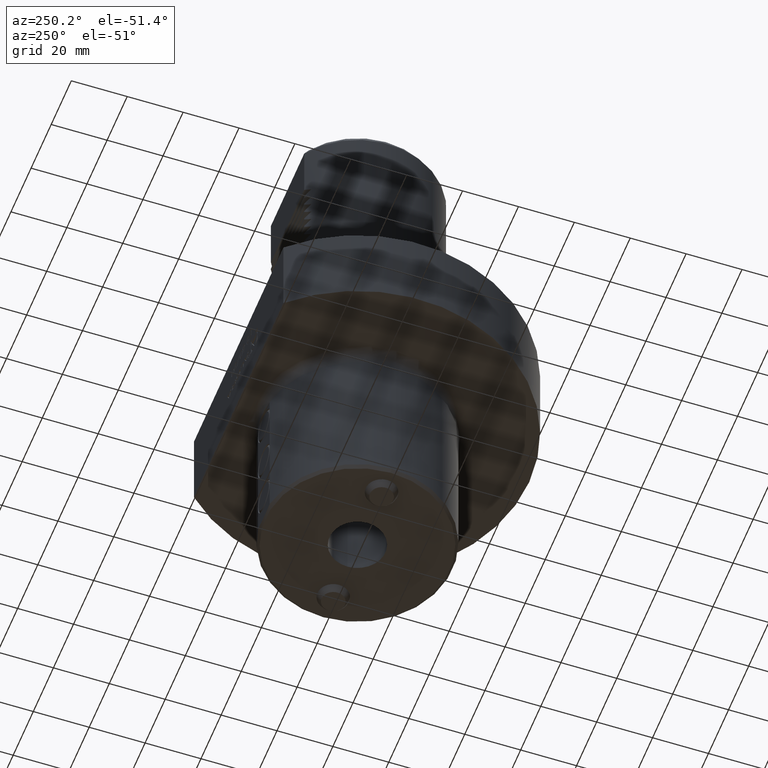
[diagram: clean part render]
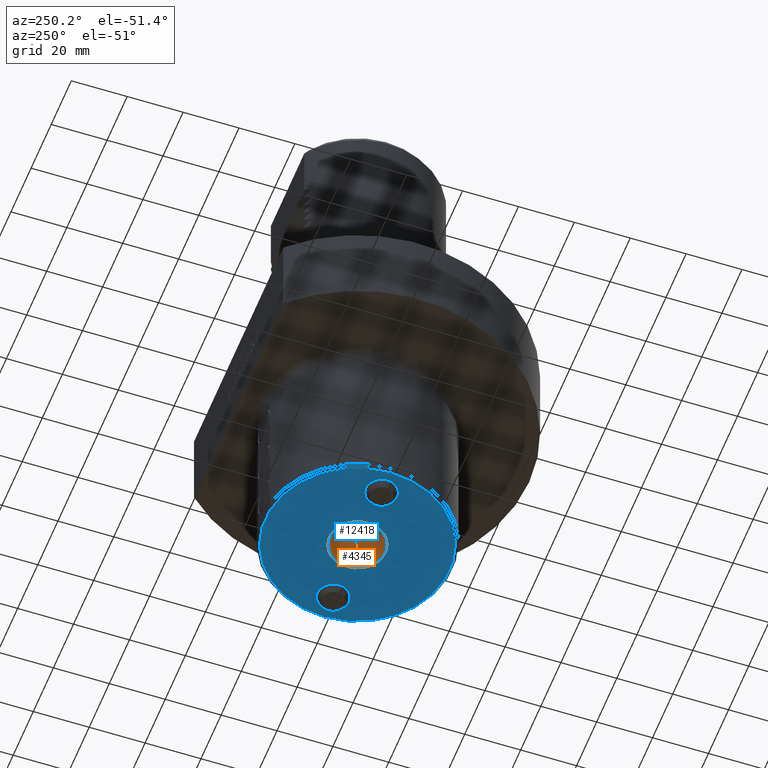
[diagram: same view with the hole feature highlighted: cylindrical wall and planar end face, labeled with their STEP entity ids]
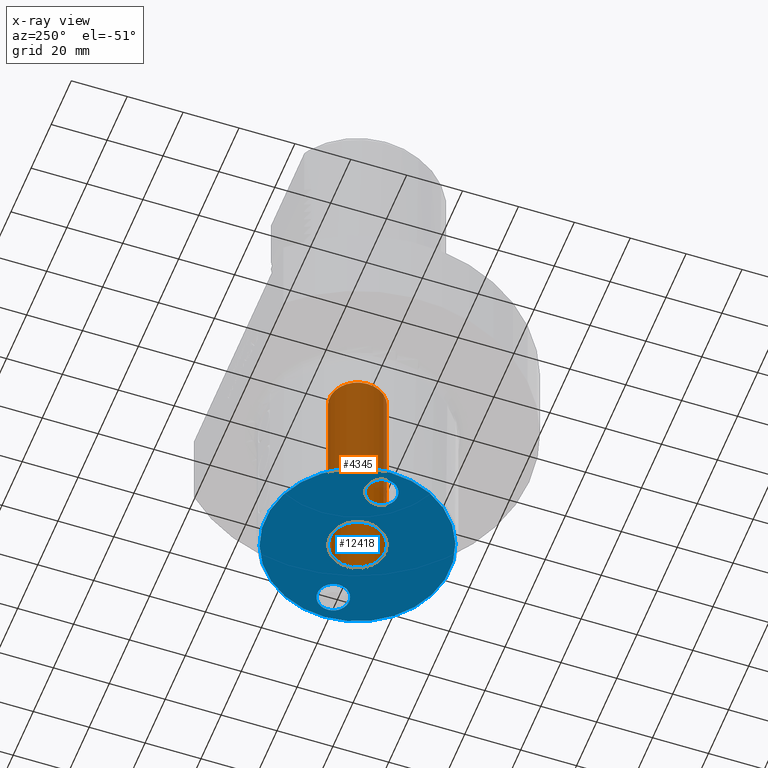
[diagram: x-ray of the same camera — body ghosted, the hole faces saturated]
A machine part, auxiliary view. The highlighted faces form one hole feature of diameter 20 mm: the cylindrical wall (entity #4345, orange) and its adjacent planar end face (entity #12418, blue) — they share a circular edge in the B-rep.
The next image is the same camera in x-ray (body ghosted, the hole faces saturated) — the bore reads through the body.
Wall:
#389 = CARTESIAN_POINT ( 'NONE',  ( -3.330669073875456999E-15, -1.479114197289392931E-30, -14.99999999999995737 ) ) ;
#793 = DIRECTION ( 'NONE',  ( 0.000000000000000000, 9.860761315262649757E-32, 1.000000000000000000 ) ) ;
#2236 = CYLINDRICAL_SURFACE ( 'NONE', #5972, 10.00000000000000000 ) ;
#3050 = DIRECTION ( 'NONE',  ( 1.000000000000000000, 0.000000000000000000, 0.000000000000000000 ) ) ;
#3246 = CARTESIAN_POINT ( 'NONE',  ( -10.00000000000000355, -1.479114197289392931E-30, -14.99999999999995559 ) ) ;
#4075 = CIRCLE ( 'NONE', #5495, 10.00000000000000000 ) ;
#4194 = FACE_OUTER_BOUND ( 'NONE', #10243, .T. ) ;
#4302 = AXIS2_PLACEMENT_3D ( 'NONE', #10859, #793, #9639 ) ;
#4345 = ADVANCED_FACE ( 'Defeature completata1_73', ( #4194, #12540 ), #2236, .F. ) ;
#4598 = VERTEX_POINT ( 'NONE', #3246 ) ;
#5495 = AXIS2_PLACEMENT_3D ( 'NONE', #389, #10911, #10030 ) ;
#5972 = AXIS2_PLACEMENT_3D ( 'NONE', #11038, #9896, #3050 ) ;
#7869 = ORIENTED_EDGE ( 'NONE', *, *, #11715, .F. ) ;
#8139 = CIRCLE ( 'NONE', #4302, 10.00000000000000000 ) ;
#9026 = EDGE_LOOP ( 'NONE', ( #11335 ) ) ;
#9639 = DIRECTION ( 'NONE',  ( 1.000000000000000000, 0.000000000000000000, 0.000000000000000000 ) ) ;
#9896 = DIRECTION ( 'NONE',  ( 0.000000000000000000, 0.000000000000000000, 1.000000000000000000 ) ) ;
#10030 = DIRECTION ( 'NONE',  ( -1.000000000000000000, 0.000000000000000000, 1.734723475976807094E-16 ) ) ;
#10243 = EDGE_LOOP ( 'NONE', ( #7869 ) ) ;
#10859 = CARTESIAN_POINT ( 'NONE',  ( -1.998401444325279879E-14, -8.874685183736380008E-30, -90.00000000000000000 ) ) ;
#10911 = DIRECTION ( 'NONE',  ( -2.220446049250309876E-16, -9.860761315262649757E-32, -1.000000000000000000 ) ) ;
#11038 = CARTESIAN_POINT ( 'NONE',  ( -1.998401444325279879E-14, -8.874685183736380008E-30, -90.00000000000000000 ) ) ;
#11243 = EDGE_CURVE ( 'NONE', #4598, #4598, #4075, .T. ) ;
#11335 = ORIENTED_EDGE ( 'NONE', *, *, #11243, .F. ) ;
#11715 = EDGE_CURVE ( 'NONE', #13489, #13489, #8139, .T. ) ;
#12507 = CARTESIAN_POINT ( 'NONE',  ( 9.999999999999978684, -8.874685183736380008E-30, -90.00000000000000000 ) ) ;
#12540 = FACE_OUTER_BOUND ( 'NONE', #9026, .T. ) ;
#13489 = VERTEX_POINT ( 'NONE', #12507 ) ;
End face:
#793 = DIRECTION ( 'NONE',  ( 0.000000000000000000, 9.860761315262649757E-32, 1.000000000000000000 ) ) ;
#1216 = AXIS2_PLACEMENT_3D ( 'NONE', #14724, #11096, #8737 ) ;
#1298 = EDGE_LOOP ( 'NONE', ( #7077 ) ) ;
#1392 = DIRECTION ( 'NONE',  ( 2.220446049250309876E-16, 9.860761315262649757E-32, 1.000000000000000000 ) ) ;
#1848 = ORIENTED_EDGE ( 'NONE', *, *, #11715, .T. ) ;
#1981 = VERTEX_POINT ( 'NONE', #5415 ) ;
#2456 = EDGE_CURVE ( 'NONE', #11378, #11378, #3365, .T. ) ;
#2514 = CARTESIAN_POINT ( 'NONE',  ( -1.998401444325279879E-14, -8.874685183736380008E-30, -90.00000000000000000 ) ) ;
#2660 = EDGE_CURVE ( 'NONE', #1981, #1981, #11544, .T. ) ;
#3053 = FACE_BOUND ( 'NONE', #11948, .T. ) ;
#3182 = CARTESIAN_POINT ( 'NONE',  ( -18.32876297883047911, 1.018969850880803844E-14, -90.00000000000000000 ) ) ;
#3365 = CIRCLE ( 'NONE', #13694, 33.00000000000000000 ) ;
#4302 = AXIS2_PLACEMENT_3D ( 'NONE', #10859, #793, #9639 ) ;
#4412 = PLANE ( 'NONE',  #8875 ) ;
#4519 = VERTEX_POINT ( 'NONE', #3182 ) ;
#5046 = AXIS2_PLACEMENT_3D ( 'NONE', #6532, #13364, #8838 ) ;
#5415 = CARTESIAN_POINT ( 'NONE',  ( 29.67123702116952799, -1.799955797581512734E-14, -90.00000000000000000 ) ) ;
#5669 = DIRECTION ( 'NONE',  ( -1.000000000000000000, 4.440892098500630106E-16, 4.205390244792259832E-16 ) ) ;
#6301 = EDGE_LOOP ( 'NONE', ( #1848 ) ) ;
#6532 = CARTESIAN_POINT ( 'NONE',  ( -24.00000000000001776, 1.018969850880803844E-14, -90.00000000000000000 ) ) ;
#7077 = ORIENTED_EDGE ( 'NONE', *, *, #2660, .T. ) ;
#7457 = CIRCLE ( 'NONE', #5046, 5.671237021169537762 ) ;
#8139 = CIRCLE ( 'NONE', #4302, 10.00000000000000000 ) ;
#8737 = DIRECTION ( 'NONE',  ( 1.000000000000000000, 0.000000000000000000, 0.000000000000000000 ) ) ;
#8762 = CARTESIAN_POINT ( 'NONE',  ( -1.998401444325279879E-14, -8.874685183736380008E-30, -90.00000000000000000 ) ) ;
#8834 = FACE_BOUND ( 'NONE', #6301, .T. ) ;
#8838 = DIRECTION ( 'NONE',  ( 1.000000000000000000, 0.000000000000000000, 0.000000000000000000 ) ) ;
#8875 = AXIS2_PLACEMENT_3D ( 'NONE', #8762, #12230, #9969 ) ;
#8920 = FACE_BOUND ( 'NONE', #1298, .T. ) ;
#9451 = EDGE_LOOP ( 'NONE', ( #13468 ) ) ;
#9639 = DIRECTION ( 'NONE',  ( 1.000000000000000000, 0.000000000000000000, 0.000000000000000000 ) ) ;
#9969 = DIRECTION ( 'NONE',  ( 1.000000000000000000, 0.000000000000000000, -2.220446049250309876E-16 ) ) ;
#10382 = EDGE_CURVE ( 'NONE', #4519, #4519, #7457, .T. ) ;
#10859 = CARTESIAN_POINT ( 'NONE',  ( -1.998401444325279879E-14, -8.874685183736380008E-30, -90.00000000000000000 ) ) ;
#11096 = DIRECTION ( 'NONE',  ( 2.220446049250309876E-16, 9.860761315262649757E-32, 1.000000000000000000 ) ) ;
#11160 = CARTESIAN_POINT ( 'NONE',  ( -33.00000000000002132, 1.465494392505206949E-14, -89.99999999999998579 ) ) ;
#11215 = ORIENTED_EDGE ( 'NONE', *, *, #10382, .T. ) ;
#11378 = VERTEX_POINT ( 'NONE', #11160 ) ;
#11544 = CIRCLE ( 'NONE', #1216, 5.671237021169534209 ) ;
#11715 = EDGE_CURVE ( 'NONE', #13489, #13489, #8139, .T. ) ;
#11948 = EDGE_LOOP ( 'NONE', ( #11215 ) ) ;
#12230 = DIRECTION ( 'NONE',  ( 2.220446049250309876E-16, 9.860761315262649757E-32, 1.000000000000000000 ) ) ;
#12418 = ADVANCED_FACE ( 'Defeature completata1_62', ( #8920, #3053, #8834, #13444 ), #4412, .F. ) ;
#12507 = CARTESIAN_POINT ( 'NONE',  ( 9.999999999999978684, -8.874685183736380008E-30, -90.00000000000000000 ) ) ;
#13364 = DIRECTION ( 'NONE',  ( 2.220446049250309876E-16, 9.860761315262649757E-32, 1.000000000000000000 ) ) ;
#13444 = FACE_OUTER_BOUND ( 'NONE', #9451, .T. ) ;
#13468 = ORIENTED_EDGE ( 'NONE', *, *, #2456, .F. ) ;
#13489 = VERTEX_POINT ( 'NONE', #12507 ) ;
#13694 = AXIS2_PLACEMENT_3D ( 'NONE', #2514, #1392, #5669 ) ;
#14724 = CARTESIAN_POINT ( 'NONE',  ( 23.99999999999999289, -1.799955797581512734E-14, -90.00000000000000000 ) ) ;